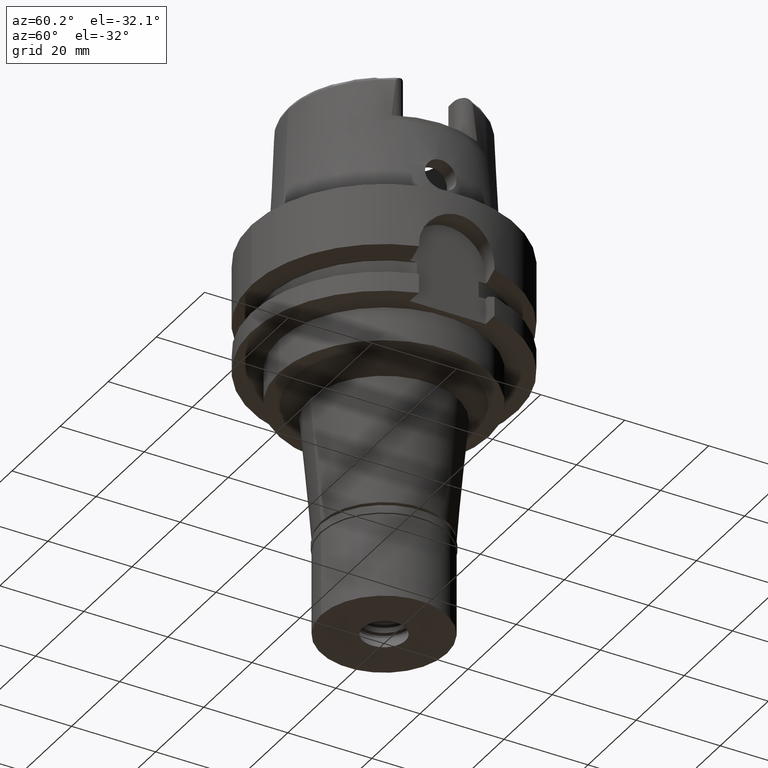
[diagram: clean part render]
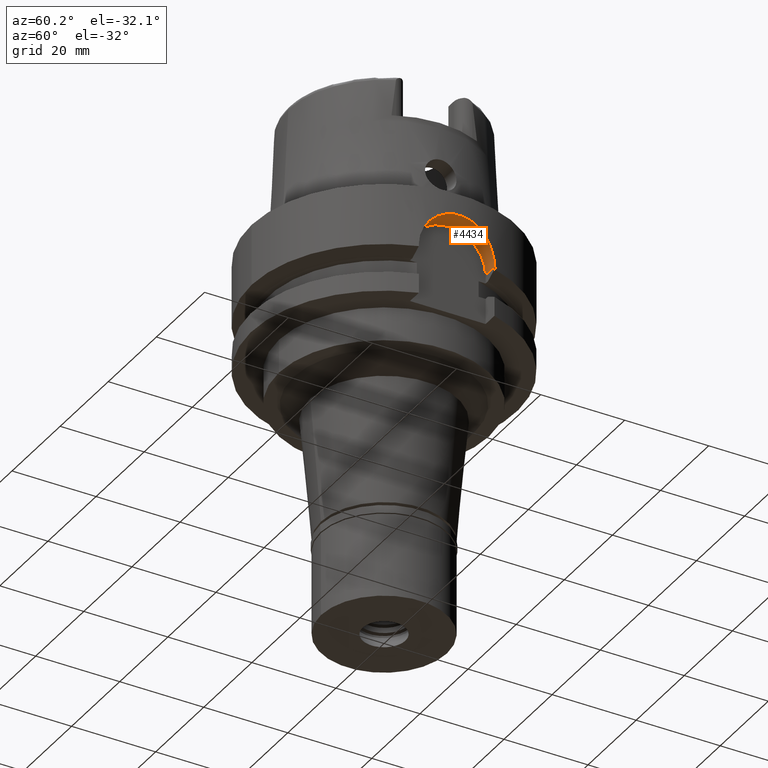
[diagram: same view with one face highlighted and labeled with its STEP entity id]
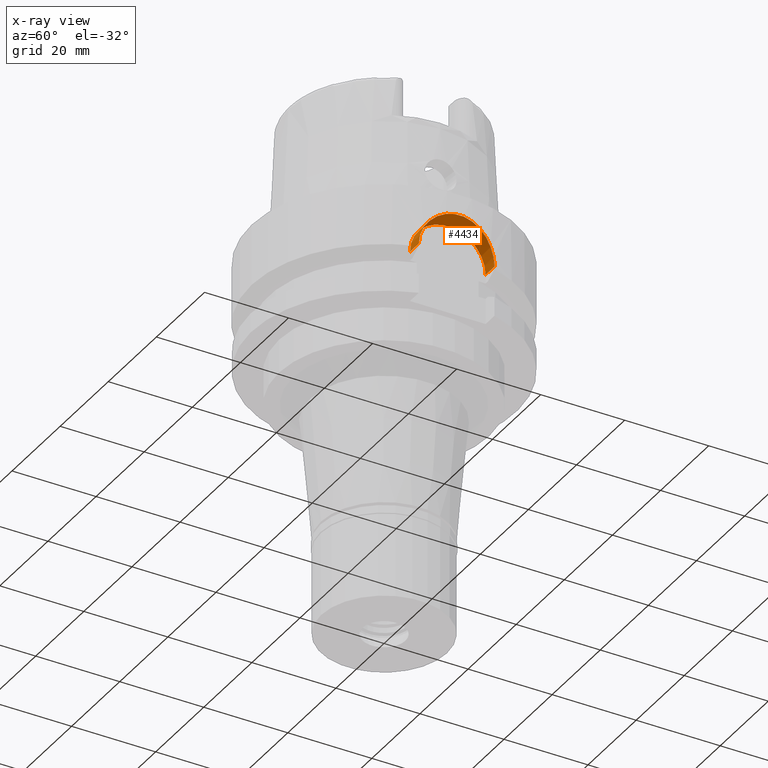
[diagram: x-ray of the same camera — body ghosted, the highlighted face saturated]
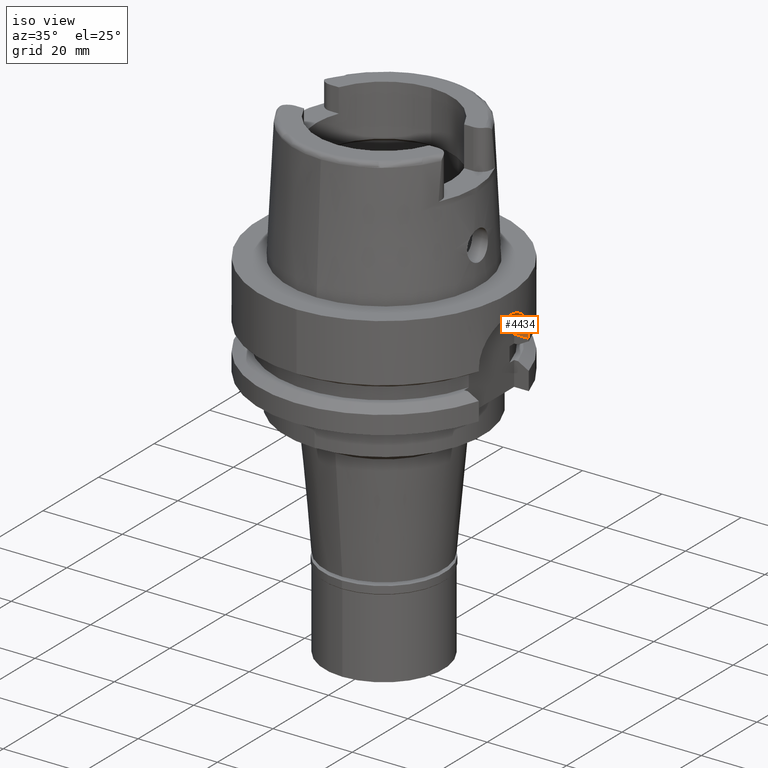
[diagram: same view with one face highlighted and labeled with its STEP entity id]
A machine part, auxiliary view. The second image highlights one B-rep face of the part: STEP entity #4434.
The next image is the same camera in x-ray: the body ghosted, the highlighted face saturated — about 0% of this face is hidden behind the body in this view.
A second angle (iso view) of the same face is appended — the face is thin or edge-on in the first view.
In plain terms, the highlighted cylindrical surface (partial cylindrical patch) has radius 9 mm, axis along (1, 0, 0).
Its self-contained STEP definition (entity closure, byte-faithful):
#134 = LINE ( 'NONE', #3192, #3381 ) ;
#217 = VERTEX_POINT ( 'NONE', #2993 ) ;
#268 = CARTESIAN_POINT ( 'NONE',  ( 30.67457865648816195, 7.171856072139444649, -8.529931626851276150 ) ) ;
#302 = CARTESIAN_POINT ( 'NONE',  ( 30.67648673996946940, -7.158261746662619274, -8.536475433078319242 ) ) ;
#333 = CARTESIAN_POINT ( 'NONE',  ( 31.36974107240685683, 2.865061319423810371, -5.466898980221783333 ) ) ;
#352 = VERTEX_POINT ( 'NONE', #2652 ) ;
#358 = CARTESIAN_POINT ( 'NONE',  ( 30.20358797388024996, 8.944643206330265883, -12.84709151010663675 ) ) ;
#558 = AXIS2_PLACEMENT_3D ( 'NONE', #1762, #4735, #2179 ) ;
#636 = DIRECTION ( 'NONE',  ( -1.000000000000000000, 7.275179563198000240E-14, 0.0000000000000000000 ) ) ;
#702 = CARTESIAN_POINT ( 'NONE',  ( 31.14265416100611361, 4.733036256195831903, -6.343630746893039074 ) ) ;
#727 = CARTESIAN_POINT ( 'NONE',  ( 30.43977648275462755, -8.107039677301463243, -10.04674908641424302 ) ) ;
#757 = CARTESIAN_POINT ( 'NONE',  ( 31.06325662779358865, -5.228671107364823101, -6.673168871994157314 ) ) ;
#787 = CARTESIAN_POINT ( 'NONE',  ( 30.24411855761351120, 8.805914388043271757, -12.13539141318346459 ) ) ;
#811 = CARTESIAN_POINT ( 'NONE',  ( 30.34753845535378858, 8.443353759102805611, -10.87011227179959683 ) ) ;
#1037 = EDGE_CURVE ( 'NONE', #3441, #217, #4766, .T. ) ;
#1080 = EDGE_CURVE ( 'NONE', #3441, #352, #2544, .T. ) ;
#1136 = CARTESIAN_POINT ( 'NONE',  ( 31.34329904939706779, 3.141152020194714733, -5.564686203725653257 ) ) ;
#1153 = ORIENTED_EDGE ( 'NONE', *, *, #1080, .T. ) ;
#1165 = CARTESIAN_POINT ( 'NONE',  ( 31.41688702855237381, -2.303958204863625792, -5.294893133561984655 ) ) ;
#1189 = CARTESIAN_POINT ( 'NONE',  ( 30.22790629930049988, -8.861407028173815092, -12.41998501316760084 ) ) ;
#1224 = CARTESIAN_POINT ( 'NONE',  ( 30.25334700510778774, 8.774184520934717568, -11.99114784342863338 ) ) ;
#1252 = CARTESIAN_POINT ( 'NONE',  ( 31.37076785105515242, -2.864251806281315371, -5.462851300592064696 ) ) ;
#1385 = CARTESIAN_POINT ( 'NONE',  ( 31.50000000000000000, 0.0000000000000000000, -14.00000000000000000 ) ) ;
#1408 = CARTESIAN_POINT ( 'NONE',  ( 30.18691769625000276, -9.000000000000000000, -14.00000000000000000 ) ) ;
#1554 = CARTESIAN_POINT ( 'NONE',  ( 31.49593995875184760, 0.5824406203651643077, -5.014086611491520351 ) ) ;
#1589 = CARTESIAN_POINT ( 'NONE',  ( 31.47995812148796091, 1.160046391709271596, -5.070275299359399135 ) ) ;
#1616 = CARTESIAN_POINT ( 'NONE',  ( 31.02178139088391262, -5.469368629866051101, -6.850961393578056224 ) ) ;
#1640 = CARTESIAN_POINT ( 'NONE',  ( 30.76223244102489218, -6.780310109840978150, -8.074058221127843993 ) ) ;
#1671 = CARTESIAN_POINT ( 'NONE',  ( 30.80627024168126482, -6.578021956583393504, -7.850468457061067440 ) ) ;
#1762 = CARTESIAN_POINT ( 'NONE',  ( 26.50000000000000000, 0.0000000000000000000, -14.00000000000000000 ) ) ;
#1915 = ORIENTED_EDGE ( 'NONE', *, *, #3407, .F. ) ;
#1977 = CARTESIAN_POINT ( 'NONE',  ( 31.06337031949833971, 5.232717913700966506, -6.671478342291513819 ) ) ;
#2003 = CARTESIAN_POINT ( 'NONE',  ( 30.55328374462271412, 7.666529608546148289, -9.276369660486485813 ) ) ;
#2040 = CARTESIAN_POINT ( 'NONE',  ( 30.51471566330389251, 7.818092969663005043, -9.531611547806358331 ) ) ;
#2066 = CARTESIAN_POINT ( 'NONE',  ( 31.32942407001705476, 3.276634987655392184, -5.616381086333957384 ) ) ;
#2091 = CARTESIAN_POINT ( 'NONE',  ( 30.18691769624740218, 8.999999999999172218, -13.42118103258393269 ) ) ;
#2106 = AXIS2_PLACEMENT_3D ( 'NONE', #1385, #4063, #3983 ) ;
#2127 = CARTESIAN_POINT ( 'NONE',  ( 26.50000000000000000, -9.000000000000000000, -14.00000000000000000 ) ) ;
#2135 = EDGE_CURVE ( 'NONE', #2955, #352, #134, .T. ) ;
#2179 = DIRECTION ( 'NONE',  ( 0.0000000000000000000, 0.0000000000000000000, 1.000000000000000000 ) ) ;
#2255 = CARTESIAN_POINT ( 'NONE',  ( 30.20855525196790126, -8.927130629316007315, -12.84761101344151690 ) ) ;
#2340 = CYLINDRICAL_SURFACE ( 'NONE', #2106, 9.000000000000000000 ) ;
#2430 = CARTESIAN_POINT ( 'NONE',  ( 30.76175992178344387, 6.793606235032374485, -8.066485555667016527 ) ) ;
#2456 = CARTESIAN_POINT ( 'NONE',  ( 31.28390560130297260, -3.685853092396611075, -5.788039816656071146 ) ) ;
#2487 = CARTESIAN_POINT ( 'NONE',  ( 30.27272811073104108, -8.707439095201610968, -11.70485290000712197 ) ) ;
#2513 = CARTESIAN_POINT ( 'NONE',  ( 31.23407530532514897, -4.086554968003722976, -5.979823621316965543 ) ) ;
#2538 = CARTESIAN_POINT ( 'NONE',  ( 30.32034500589702475, -8.540154658217009143, -11.14468743707369747 ) ) ;
#2544 = CIRCLE ( 'NONE', #558, 9.000000000000000000 ) ;
#2652 = CARTESIAN_POINT ( 'NONE',  ( 26.50000000000000000, 9.000000000000000000, -14.00000000000000000 ) ) ;
#2678 = EDGE_LOOP ( 'NONE', ( #3962, #1153, #3017, #1915 ) ) ;
#2774 = B_SPLINE_CURVE_WITH_KNOTS ( 'NONE', 3,
 ( #1408, #3139, #4870, #4439, #2255, #5560, #1189, #3810, #2487, #2538, #2884, #727, #3704, #3731, #302, #1640, #1671, #3400, #5505, #4616, #1616, #757, #5131, #3286, #5020, #2513, #5444, #2456, #3341, #4243, #1252, #1165, #5533, #4181, #4269, #4155, #1554, #1589, #5073, #5474, #4678, #4214, #333, #1136, #2066, #2856, #4587, #2910, #2972, #702, #3315, #1977, #5048, #3366, #4703, #2430, #268, #2003, #2040, #2946, #3760, #811, #4643, #3785, #5102, #1224, #787, #358, #2091, #5065 ),
 .UNSPECIFIED., .F., .F.,
 ( 4, 2, 2, 2, 2, 2, 2, 2, 2, 2, 2, 2, 2, 2, 2, 2, 2, 2, 2, 2, 2, 2, 2, 2, 2, 2, 2, 2, 2, 2, 2, 2, 2, 2, 4 ),
 ( 0.0000000000000000000, 0.03125000000000000000, 0.04687500000000000694, 0.06250000000000001388, 0.09375000000000002776, 0.1250000000000000555, 0.1875000000000000555, 0.2187500000000000000, 0.2499999999999999445, 0.2812499999999998890, 0.2968749999999998890, 0.3124999999999998890, 0.3437499999999998335, 0.3593749999999997780, 0.3749999999999997224, 0.4062499999999995559, 0.4374999999999993894, 0.4999999999999991673, 0.5312499999999990008, 0.5624999999999988898, 0.5937499999999987788, 0.6093749999999987788, 0.6249999999999987788, 0.6562499999999987788, 0.6718749999999987788, 0.6874999999999987788, 0.7187499999999987788, 0.7499999999999987788, 0.8124999999999988898, 0.8437499999999991118, 0.8749999999999993339, 0.9062499999999995559, 0.9218749999999996669, 0.9374999999999997780, 1.000000000000000000 ),
 .UNSPECIFIED. ) ;
#2847 = CARTESIAN_POINT ( 'NONE',  ( 26.50000000000000000, -9.000000000000000000, -14.00000000000000000 ) ) ;
#2856 = CARTESIAN_POINT ( 'NONE',  ( 31.28442770822087482, 3.689333350927733957, -5.785593697259752588 ) ) ;
#2884 = CARTESIAN_POINT ( 'NONE',  ( 30.34751265162436695, -8.443458830470440546, -10.87019936305868839 ) ) ;
#2910 = CARTESIAN_POINT ( 'NONE',  ( 31.19852760141703740, 4.349628069968085597, -6.119398192074422482 ) ) ;
#2946 = CARTESIAN_POINT ( 'NONE',  ( 30.44247484530313841, 8.094823962734732703, -10.05495374132904551 ) ) ;
#2955 = VERTEX_POINT ( 'NONE', #4371 ) ;
#2972 = CARTESIAN_POINT ( 'NONE',  ( 31.18026372491415188, 4.478581744179544799, -6.191984732155419557 ) ) ;
#2993 = CARTESIAN_POINT ( 'NONE',  ( 30.18691769625000276, -9.000000000000000000, -14.00000000000000000 ) ) ;
#3017 = ORIENTED_EDGE ( 'NONE', *, *, #2135, .F. ) ;
#3139 = CARTESIAN_POINT ( 'NONE',  ( 30.18691769624740928, -8.999999999999156231, -13.71037681504038197 ) ) ;
#3192 = CARTESIAN_POINT ( 'NONE',  ( 30.18691769625000276, 9.000000000000000000, -14.00000000000000000 ) ) ;
#3286 = CARTESIAN_POINT ( 'NONE',  ( 31.14338863660911727, -4.733096059117124277, -6.339361075584200478 ) ) ;
#3315 = CARTESIAN_POINT ( 'NONE',  ( 31.12353738467195186, 4.857108065257734530, -6.421740074095394490 ) ) ;
#3341 = CARTESIAN_POINT ( 'NONE',  ( 31.29980009624727089, -3.548412778991579586, -5.727780317876099758 ) ) ;
#3364 = VECTOR ( 'NONE', #5597, 1000.000000000000000 ) ;
#3366 = CARTESIAN_POINT ( 'NONE',  ( 30.93669072151961075, 5.935174356706133914, -7.227677677711099591 ) ) ;
#3381 = VECTOR ( 'NONE', #636, 1000.000000000000000 ) ;
#3400 = CARTESIAN_POINT ( 'NONE',  ( 30.89358473424197271, -6.154923340952479727, -7.426856056623415192 ) ) ;
#3407 = EDGE_CURVE ( 'NONE', #217, #2955, #2774, .T. ) ;
#3441 = VERTEX_POINT ( 'NONE', #2847 ) ;
#3704 = CARTESIAN_POINT ( 'NONE',  ( 30.51295992325599471, -7.831031735824958595, -9.524359434863979956 ) ) ;
#3731 = CARTESIAN_POINT ( 'NONE',  ( 30.63449263717695814, -7.335312276527937492, -8.776691121608518387 ) ) ;
#3760 = CARTESIAN_POINT ( 'NONE',  ( 30.40857794852356477, 8.220808971694882672, -10.32505485455268968 ) ) ;
#3785 = CARTESIAN_POINT ( 'NONE',  ( 30.28450372495371212, 8.666067238753489832, -11.56642591590863844 ) ) ;
#3810 = CARTESIAN_POINT ( 'NONE',  ( 30.25248755720766525, -8.777266751901290576, -11.98866695259726001 ) ) ;
#3962 = ORIENTED_EDGE ( 'NONE', *, *, #1037, .F. ) ;
#3983 = DIRECTION ( 'NONE',  ( 0.0000000000000000000, 0.0000000000000000000, 1.000000000000000000 ) ) ;
#4063 = DIRECTION ( 'NONE',  ( 1.000000000000000000, 0.0000000000000000000, 0.0000000000000000000 ) ) ;
#4155 = CARTESIAN_POINT ( 'NONE',  ( 31.49999032475669836, 0.2923378001484659983, -5.000023222123024524 ) ) ;
#4181 = CARTESIAN_POINT ( 'NONE',  ( 31.48386893824428512, -1.159479150354190136, -5.055985962240743703 ) ) ;
#4214 = CARTESIAN_POINT ( 'NONE',  ( 31.38213898770769816, 2.726004786677573843, -5.421442656051969955 ) ) ;
#4243 = CARTESIAN_POINT ( 'NONE',  ( 31.34426481373275308, -3.140372676482575454, -5.560575711231212637 ) ) ;
#4269 = CARTESIAN_POINT ( 'NONE',  ( 31.50001929854581562, -0.5815424213979328849, -4.999925917713864187 ) ) ;
#4371 = CARTESIAN_POINT ( 'NONE',  ( 30.18691769625000276, 9.000000000000000000, -14.00000000000000000 ) ) ;
#4434 = ADVANCED_FACE ( 'NONE', ( #5272 ), #2340, .F. ) ;
#4439 = CARTESIAN_POINT ( 'NONE',  ( 30.20341712307055104, -8.944484542284873996, -12.99096933133085052 ) ) ;
#4587 = CARTESIAN_POINT ( 'NONE',  ( 31.25151228767666112, 3.957592084454305770, -5.911347973694871527 ) ) ;
#4616 = CARTESIAN_POINT ( 'NONE',  ( 31.00074376784293761, -5.587277725334197420, -6.942692127589581652 ) ) ;
#4643 = CARTESIAN_POINT ( 'NONE',  ( 30.32018569978996325, 8.540719416043382139, -11.14638894856065399 ) ) ;
#4678 = CARTESIAN_POINT ( 'NONE',  ( 31.41674955093737864, 2.305828661641698307, -5.295385546288899015 ) ) ;
#4703 = CARTESIAN_POINT ( 'NONE',  ( 30.89357346006925198, 6.155027104557191819, -7.426868153082810231 ) ) ;
#4735 = DIRECTION ( 'NONE',  ( -1.000000000000000000, 0.0000000000000000000, 0.0000000000000000000 ) ) ;
#4766 = LINE ( 'NONE', #2127, #3364 ) ;
#4870 = CARTESIAN_POINT ( 'NONE',  ( 30.19106408369235695, -8.986127533250236610, -13.42191624975314745 ) ) ;
#5020 = CARTESIAN_POINT ( 'NONE',  ( 31.18110769323893194, -4.478625878948443884, -6.187782201585594777 ) ) ;
#5048 = CARTESIAN_POINT ( 'NONE',  ( 31.02172675097689591, 5.473353344265652787, -6.849315080894396779 ) ) ;
#5065 = CARTESIAN_POINT ( 'NONE',  ( 30.18691769625000276, 9.000000000000000000, -14.00000000000000000 ) ) ;
#5073 = CARTESIAN_POINT ( 'NONE',  ( 31.46813436653513563, 1.445595429485655226, -5.112017078405211912 ) ) ;
#5102 = CARTESIAN_POINT ( 'NONE',  ( 30.27349914617906279, 8.704399374176844617, -11.70737523039237082 ) ) ;
#5131 = CARTESIAN_POINT ( 'NONE',  ( 31.08392747295224368, -5.104426155325488601, -6.586139117311385682 ) ) ;
#5272 = FACE_OUTER_BOUND ( 'NONE', #2678, .T. ) ;
#5444 = CARTESIAN_POINT ( 'NONE',  ( 31.25112894587547885, -3.954137364613140804, -5.913739049682304127 ) ) ;
#5474 = CARTESIAN_POINT ( 'NONE',  ( 31.43637939640763079, 2.021701536126821797, -5.225096623442009758 ) ) ;
#5505 = CARTESIAN_POINT ( 'NONE',  ( 30.93697280953875506, -5.933705380260789752, -7.226387749282896955 ) ) ;
#5533 = CARTESIAN_POINT ( 'NONE',  ( 31.43661431099179637, -2.017765959448403645, -5.224263440735973596 ) ) ;
#5560 = CARTESIAN_POINT ( 'NONE',  ( 30.22083649410188499, -8.885466407613595408, -12.56147568749902987 ) ) ;
#5597 = DIRECTION ( 'NONE',  ( 1.000000000000000000, 6.889739586340000358E-14, 0.0000000000000000000 ) ) ;